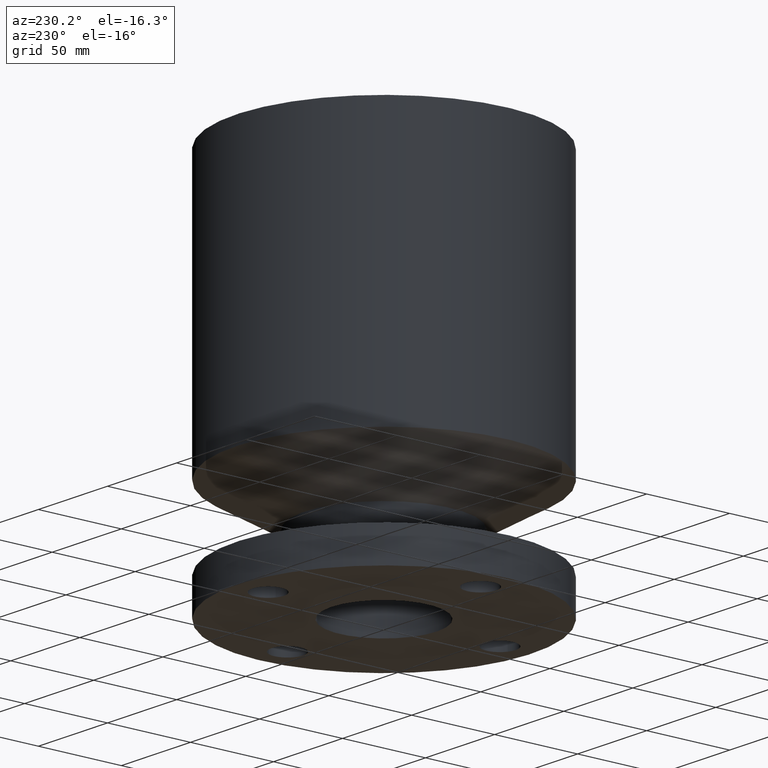
[diagram: clean part render]
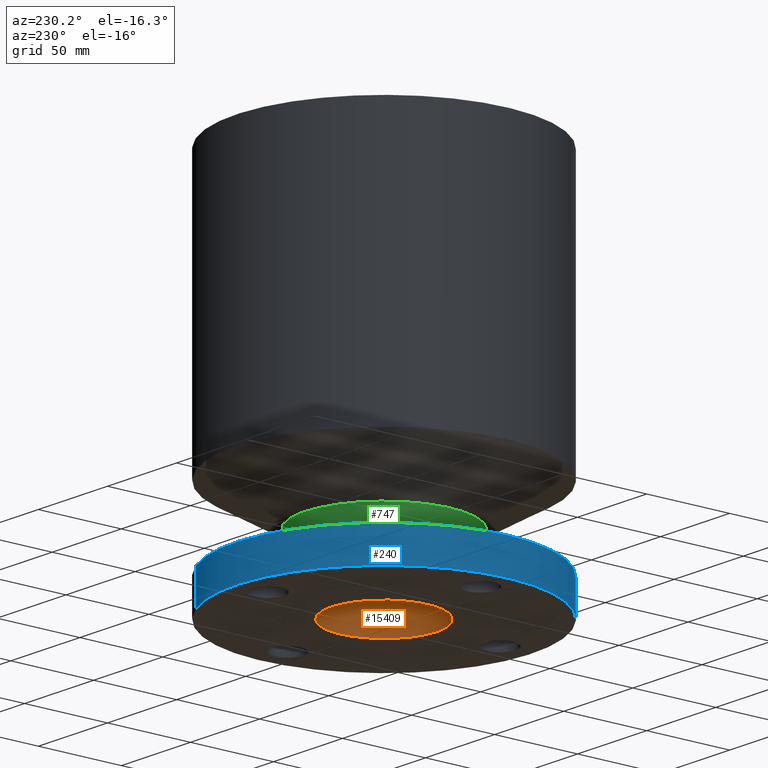
[diagram: same view with three faces highlighted in distinct colors, each labeled with its STEP entity id]
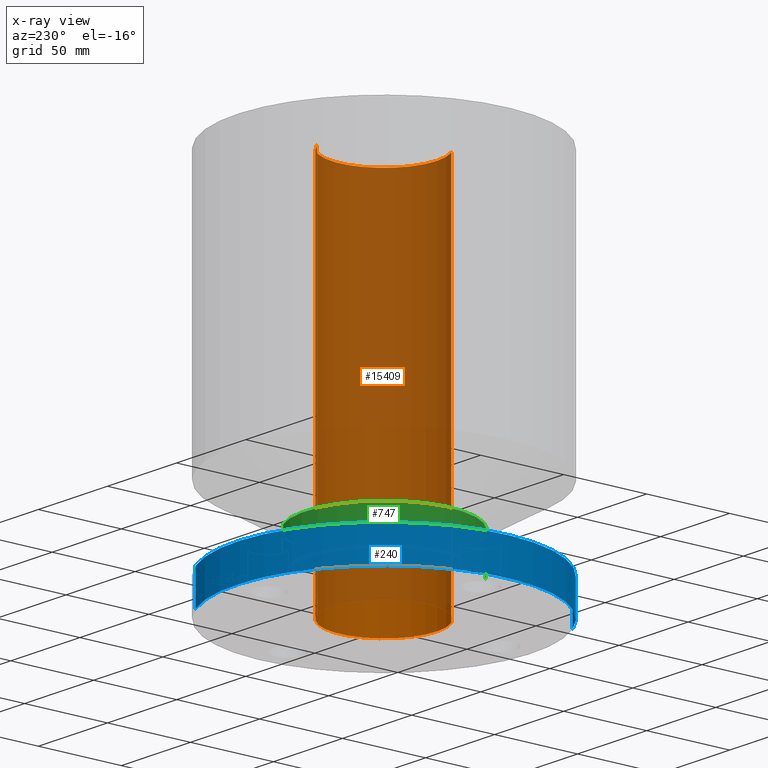
[diagram: x-ray of the same camera — body ghosted, the three highlighted faces saturated]
A machine part, auxiliary view with three faces highlighted in distinct colors.
The next image is the same camera in x-ray (body ghosted, the three faces saturated) — at least one of them is partly hidden behind the body in this view.
Their STEP definitions:

[orange] entity #15409 — the highlighted cylindrical surface (partial cylindrical patch) has radius 31.75 mm, axis along (0, 0, -1).
#14953=AXIS2_PLACEMENT_3D('Circle Axis2P3D',#14951,#14952,$) ;
#15382=AXIS2_PLACEMENT_3D('Cylinder Axis2P3D',#15379,#15380,#15381) ;
#15386=AXIS2_PLACEMENT_3D('Circle Axis2P3D',#15384,#15385,$) ;
#14946=CARTESIAN_POINT('Vertex',(-0.599281923258,-1.09697820237,8.93750000004)) ;
#14948=CARTESIAN_POINT('Vertex',(0.599281923258,1.09697820237,8.93750000004)) ;
#14951=CARTESIAN_POINT('Axis2P3D Location',(0.,0.,8.93750000004)) ;
#15379=CARTESIAN_POINT('Axis2P3D Location',(0.,0.,4.43750000002)) ;
#15384=CARTESIAN_POINT('Axis2P3D Location',(0.,0.,0.)) ;
#15388=CARTESIAN_POINT('Vertex',(-0.599281923258,-1.09697820237,0.)) ;
#15390=CARTESIAN_POINT('Vertex',(0.599281923258,1.09697820237,0.)) ;
#15393=CARTESIAN_POINT('Line Origine',(-0.599281923258,-1.09697820237,4.46875000002)) ;
#15398=CARTESIAN_POINT('Line Origine',(0.599281923258,1.09697820237,4.46875000002)) ;
#14952=DIRECTION('Axis2P3D Direction',(0.,0.,-0.0393700787402)) ;
#15380=DIRECTION('Axis2P3D Direction',(0.,0.,-0.0393700787402)) ;
#15381=DIRECTION('Axis2P3D XDirection',(-0.0188750212049,-0.0345504945626,0.)) ;
#15385=DIRECTION('Axis2P3D Direction',(0.,0.,-0.0393700787402)) ;
#15394=DIRECTION('Vector Direction',(0.,0.,-0.0393700787402)) ;
#15399=DIRECTION('Vector Direction',(0.,0.,-0.0393700787402)) ;
#15395=VECTOR('Line Direction',#15394,0.0393700787402) ;
#15400=VECTOR('Line Direction',#15399,0.0393700787402) ;
#15404=ORIENTED_EDGE('',*,*,#15392,.F.) ;
#15405=ORIENTED_EDGE('',*,*,#15397,.F.) ;
#15406=ORIENTED_EDGE('',*,*,#14955,.F.) ;
#15407=ORIENTED_EDGE('',*,*,#15402,.T.) ;
#15409=ADVANCED_FACE('PartBody',(#15408),#15383,.F.) ;
#14954=CIRCLE('generated circle',#14953,1.25000000001) ;
#15387=CIRCLE('generated circle',#15386,1.25000000001) ;
#15383=CYLINDRICAL_SURFACE('generated cylinder',#15382,1.25000000001) ;
#14955=EDGE_CURVE('',#14949,#14947,#14954,.T.) ;
#15392=EDGE_CURVE('',#15389,#15391,#15387,.F.) ;
#15397=EDGE_CURVE('',#14947,#15389,#15396,.T.) ;
#15402=EDGE_CURVE('',#14949,#15391,#15401,.T.) ;
#15403=EDGE_LOOP('',(#15404,#15405,#15406,#15407)) ;
#15408=FACE_OUTER_BOUND('',#15403,.T.) ;
#15396=LINE('Line',#15393,#15395) ;
#15401=LINE('Line',#15398,#15400) ;
#14947=VERTEX_POINT('',#14946) ;
#14949=VERTEX_POINT('',#14948) ;
#15389=VERTEX_POINT('',#15388) ;
#15391=VERTEX_POINT('',#15390) ;

[blue] entity #240 — the highlighted cylindrical surface (partial cylindrical patch) has radius 88.9 mm, axis along (0, 0, -1).
#91=AXIS2_PLACEMENT_3D('Circle Axis2P3D',#89,#90,$) ;
#213=AXIS2_PLACEMENT_3D('Cylinder Axis2P3D',#210,#211,#212) ;
#217=AXIS2_PLACEMENT_3D('Circle Axis2P3D',#215,#216,$) ;
#84=CARTESIAN_POINT('Vertex',(1.67798938512,3.07153896663,0.817500000003)) ;
#86=CARTESIAN_POINT('Vertex',(-1.67798938512,-3.07153896663,0.817500000003)) ;
#89=CARTESIAN_POINT('Axis2P3D Location',(0.,0.,0.817500000003)) ;
#210=CARTESIAN_POINT('Axis2P3D Location',(0.,0.,4.43750000002)) ;
#215=CARTESIAN_POINT('Axis2P3D Location',(0.,0.,5.59482469102E-016)) ;
#219=CARTESIAN_POINT('Vertex',(-1.67798938512,-3.07153896663,5.59482469102E-016)) ;
#221=CARTESIAN_POINT('Vertex',(1.67798938512,3.07153896663,5.59482469102E-016)) ;
#224=CARTESIAN_POINT('Line Origine',(-1.67798938512,-3.07153896663,5.78659709374)) ;
#229=CARTESIAN_POINT('Line Origine',(1.67798938512,3.07153896663,5.78659709374)) ;
#90=DIRECTION('Axis2P3D Direction',(0.,0.,-0.0393700787402)) ;
#211=DIRECTION('Axis2P3D Direction',(0.,0.,-0.0393700787402)) ;
#212=DIRECTION('Axis2P3D XDirection',(-0.0188750212049,-0.0345504945626,0.)) ;
#216=DIRECTION('Axis2P3D Direction',(0.,0.,-0.0393700787402)) ;
#225=DIRECTION('Vector Direction',(0.,0.,-0.0393700787402)) ;
#230=DIRECTION('Vector Direction',(0.,0.,-0.0393700787402)) ;
#226=VECTOR('Line Direction',#225,0.0393700787402) ;
#231=VECTOR('Line Direction',#230,0.0393700787402) ;
#235=ORIENTED_EDGE('',*,*,#223,.F.) ;
#236=ORIENTED_EDGE('',*,*,#228,.T.) ;
#237=ORIENTED_EDGE('',*,*,#93,.T.) ;
#238=ORIENTED_EDGE('',*,*,#233,.F.) ;
#240=ADVANCED_FACE('PartBody',(#239),#214,.T.) ;
#92=CIRCLE('generated circle',#91,3.50000000001) ;
#218=CIRCLE('generated circle',#217,3.50000000001) ;
#214=CYLINDRICAL_SURFACE('generated cylinder',#213,3.50000000001) ;
#93=EDGE_CURVE('',#87,#85,#92,.T.) ;
#223=EDGE_CURVE('',#220,#222,#218,.T.) ;
#228=EDGE_CURVE('',#220,#87,#227,.F.) ;
#233=EDGE_CURVE('',#222,#85,#232,.F.) ;
#234=EDGE_LOOP('',(#235,#236,#237,#238)) ;
#239=FACE_OUTER_BOUND('',#234,.T.) ;
#227=LINE('Line',#224,#226) ;
#232=LINE('Line',#229,#231) ;
#85=VERTEX_POINT('',#84) ;
#87=VERTEX_POINT('',#86) ;
#220=VERTEX_POINT('',#219) ;
#222=VERTEX_POINT('',#221) ;

[green] entity #747 — the highlighted cylindrical surface (partial cylindrical patch) has radius 47.625 mm, axis along (0, 0, -1).
#516=AXIS2_PLACEMENT_3D('Circle Axis2P3D',#514,#515,$) ;
#708=AXIS2_PLACEMENT_3D('Cylinder Axis2P3D',#705,#706,#707) ;
#738=AXIS2_PLACEMENT_3D('Circle Axis2P3D',#736,#737,$) ;
#492=CARTESIAN_POINT('Vertex',(0.898922884886,1.64546730355,0.858480762117)) ;
#499=CARTESIAN_POINT('Vertex',(-0.898922884886,-1.64546730355,0.858480762117)) ;
#514=CARTESIAN_POINT('Axis2P3D Location',(0.,0.,0.858480762117)) ;
#705=CARTESIAN_POINT('Axis2P3D Location',(0.,0.,4.43750000002)) ;
#710=CARTESIAN_POINT('Line Origine',(0.898922884886,1.64546730355,1.27799038106)) ;
#714=CARTESIAN_POINT('Vertex',(0.898922884886,1.64546730355,1.69750000001)) ;
#721=CARTESIAN_POINT('Vertex',(-0.898922884886,-1.64546730355,1.69750000001)) ;
#724=CARTESIAN_POINT('Line Origine',(-0.898922884886,-1.64546730355,1.27799038106)) ;
#736=CARTESIAN_POINT('Axis2P3D Location',(0.,0.,1.69750000001)) ;
#515=DIRECTION('Axis2P3D Direction',(-0.,0.,0.0393700787402)) ;
#706=DIRECTION('Axis2P3D Direction',(0.,0.,-0.0393700787402)) ;
#707=DIRECTION('Axis2P3D XDirection',(-0.0188750212049,-0.0345504945626,0.)) ;
#711=DIRECTION('Vector Direction',(0.,0.,-0.0393700787402)) ;
#725=DIRECTION('Vector Direction',(0.,0.,-0.0393700787402)) ;
#737=DIRECTION('Axis2P3D Direction',(0.,0.,-0.0393700787402)) ;
#712=VECTOR('Line Direction',#711,0.0393700787402) ;
#726=VECTOR('Line Direction',#725,0.0393700787402) ;
#742=ORIENTED_EDGE('',*,*,#518,.F.) ;
#743=ORIENTED_EDGE('',*,*,#728,.T.) ;
#744=ORIENTED_EDGE('',*,*,#740,.T.) ;
#745=ORIENTED_EDGE('',*,*,#716,.F.) ;
#747=ADVANCED_FACE('PartBody',(#746),#709,.T.) ;
#517=CIRCLE('generated circle',#516,1.87500000001) ;
#739=CIRCLE('generated circle',#738,1.87500000001) ;
#709=CYLINDRICAL_SURFACE('generated cylinder',#708,1.87500000001) ;
#518=EDGE_CURVE('',#500,#493,#517,.F.) ;
#716=EDGE_CURVE('',#493,#715,#713,.F.) ;
#728=EDGE_CURVE('',#500,#722,#727,.F.) ;
#740=EDGE_CURVE('',#722,#715,#739,.T.) ;
#741=EDGE_LOOP('',(#742,#743,#744,#745)) ;
#746=FACE_OUTER_BOUND('',#741,.T.) ;
#713=LINE('Line',#710,#712) ;
#727=LINE('Line',#724,#726) ;
#493=VERTEX_POINT('',#492) ;
#500=VERTEX_POINT('',#499) ;
#715=VERTEX_POINT('',#714) ;
#722=VERTEX_POINT('',#721) ;